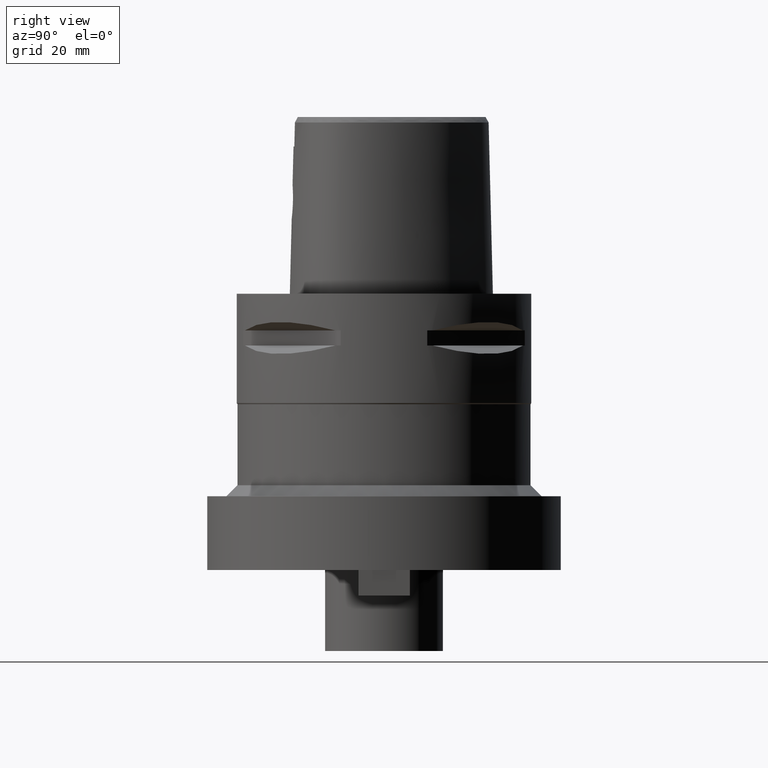
[diagram: clean part render]
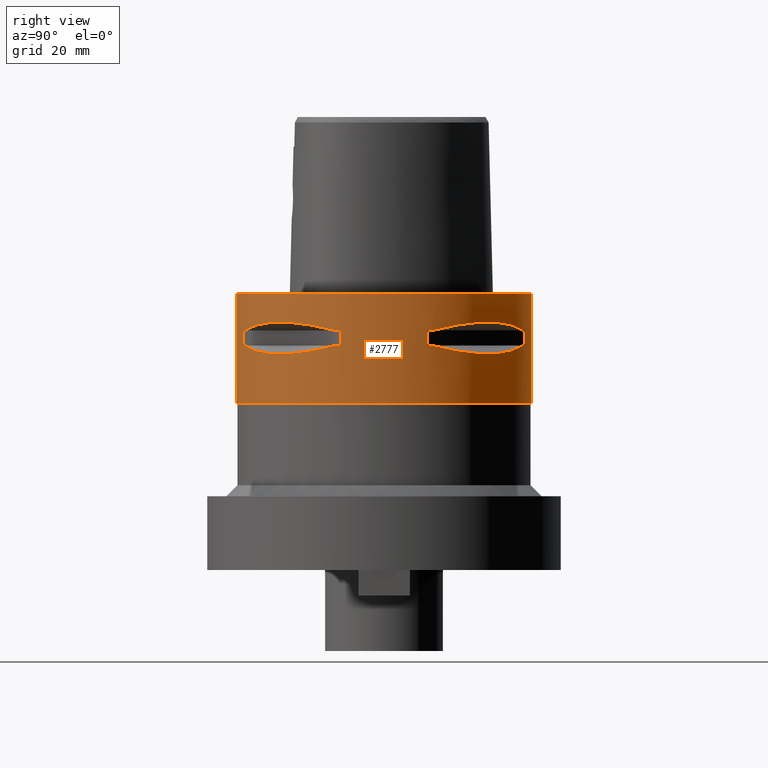
[diagram: same view with one face highlighted and labeled with its STEP entity id]
A machine part, right view. The second image highlights one B-rep face of the part: STEP entity #2777.
In plain terms, the highlighted cylindrical surface (partial cylindrical patch) has radius 40 mm, axis along (0, 0, -1).
Its self-contained STEP definition (entity closure, byte-faithful):
#296=CARTESIAN_POINT('',(0.E0,1.284042168906E-14,0.E0));
#297=DIRECTION('',(0.E0,0.E0,-1.E0));
#298=DIRECTION('',(0.E0,1.E0,0.E0));
#299=AXIS2_PLACEMENT_3D('',#296,#297,#298);
#390=DIRECTION('',(0.E0,4.960018233996E-14,-1.E0));
#391=VECTOR('',#390,2.965358983849E1);
#392=CARTESIAN_POINT('',(0.E0,-4.E1,0.E0));
#393=LINE('',#392,#391);
#447=DIRECTION('',(0.E0,-5.007941115484E-14,-1.E0));
#448=VECTOR('',#447,2.965358983849E1);
#449=CARTESIAN_POINT('',(0.E0,4.E1,0.E0));
#450=LINE('',#449,#448);
#454=DIRECTION('',(0.E0,0.E0,-1.E0));
#455=VECTOR('',#454,4.1E0);
#456=CARTESIAN_POINT('',(1.176033600281E1,-3.823211342708E1,-9.95E0));
#457=LINE('',#456,#455);
#461=CARTESIAN_POINT('',(1.323717311056E1,-3.774622163927E1,-1.405E1));
#462=CARTESIAN_POINT('',(1.626143876435E1,-3.668564587161E1,-1.485167303901E1));
#463=CARTESIAN_POINT('',(2.171906657626E1,-3.397359084062E1,-1.597254843317E1));
#464=CARTESIAN_POINT('',(2.850324251697E1,-2.850324251697E1,-1.650891631180E1));
#465=CARTESIAN_POINT('',(3.397359084062E1,-2.171906657626E1,-1.597254843317E1));
#466=CARTESIAN_POINT('',(3.668564587161E1,-1.626143876435E1,-1.485167303901E1));
#467=CARTESIAN_POINT('',(3.774622163927E1,-1.323717311056E1,-1.405E1));
#472=DIRECTION('',(0.E0,0.E0,1.E0));
#473=VECTOR('',#472,4.1E0);
#474=CARTESIAN_POINT('',(3.823211342708E1,-1.176033600281E1,-1.405E1));
#475=LINE('',#474,#473);
#479=DIRECTION('',(0.E0,0.E0,-1.E0));
#480=VECTOR('',#479,4.1E0);
#481=CARTESIAN_POINT('',(3.823211342708E1,1.176033600281E1,-9.95E0));
#482=LINE('',#481,#480);
#486=CARTESIAN_POINT('',(3.774622163927E1,1.323717311056E1,-1.405E1));
#487=CARTESIAN_POINT('',(3.668564587161E1,1.626143876435E1,-1.485167303901E1));
#488=CARTESIAN_POINT('',(3.397359084062E1,2.171906657626E1,-1.597254843317E1));
#489=CARTESIAN_POINT('',(2.850324251697E1,2.850324251697E1,-1.650891631180E1));
#490=CARTESIAN_POINT('',(2.171906657626E1,3.397359084062E1,-1.597254843317E1));
#491=CARTESIAN_POINT('',(1.626143876435E1,3.668564587161E1,-1.485167303901E1));
#492=CARTESIAN_POINT('',(1.323717311056E1,3.774622163927E1,-1.405E1));
#497=DIRECTION('',(0.E0,0.E0,1.E0));
#498=VECTOR('',#497,4.1E0);
#499=CARTESIAN_POINT('',(1.176033600281E1,3.823211342708E1,-1.405E1));
#500=LINE('',#499,#498);
#519=CARTESIAN_POINT('',(0.E0,0.E0,-2.965358983849E1));
#520=DIRECTION('',(0.E0,0.E0,1.E0));
#521=DIRECTION('',(0.E0,-1.E0,0.E0));
#522=AXIS2_PLACEMENT_3D('',#519,#520,#521);
#1434=CARTESIAN_POINT('',(1.323717311056E1,-3.774622163927E1,
-9.950000000002E0));
#1435=CARTESIAN_POINT('',(1.626143876435E1,-3.668564587161E1,
-9.148326960991E0));
#1436=CARTESIAN_POINT('',(2.171906657626E1,-3.397359084062E1,
-8.027451566833E0));
#1437=CARTESIAN_POINT('',(2.850324251697E1,-2.850324251697E1,
-7.491083688204E0));
#1438=CARTESIAN_POINT('',(3.397359084062E1,-2.171906657626E1,
-8.027451566833E0));
#1439=CARTESIAN_POINT('',(3.668564587161E1,-1.626143876435E1,
-9.148326960991E0));
#1440=CARTESIAN_POINT('',(3.774622163927E1,-1.323717311056E1,
-9.950000000002E0));
#1445=CARTESIAN_POINT('',(0.E0,1.284042168906E-14,-9.95E0));
#1446=DIRECTION('',(0.E0,0.E0,1.E0));
#1447=DIRECTION('',(9.436555409818E-1,-3.309293277639E-1,0.E0));
#1448=AXIS2_PLACEMENT_3D('',#1445,#1446,#1447);
#1453=CARTESIAN_POINT('',(0.E0,1.284042168906E-14,-9.95E0));
#1454=DIRECTION('',(0.E0,0.E0,1.E0));
#1455=DIRECTION('',(2.940084000703E-1,-9.558028356770E-1,0.E0));
#1456=AXIS2_PLACEMENT_3D('',#1453,#1454,#1455);
#1475=CARTESIAN_POINT('',(0.E0,1.284042168906E-14,-1.405E1));
#1476=DIRECTION('',(0.E0,0.E0,-1.E0));
#1477=DIRECTION('',(9.558028356770E-1,-2.940084000703E-1,0.E0));
#1478=AXIS2_PLACEMENT_3D('',#1475,#1476,#1477);
#1483=CARTESIAN_POINT('',(0.E0,1.284042168906E-14,-1.405E1));
#1484=DIRECTION('',(0.E0,0.E0,-1.E0));
#1485=DIRECTION('',(3.309293277639E-1,-9.436555409818E-1,0.E0));
#1486=AXIS2_PLACEMENT_3D('',#1483,#1484,#1485);
#1505=CARTESIAN_POINT('',(3.774622163927E1,1.323717311056E1,-9.950000000002E0));
#1506=CARTESIAN_POINT('',(3.668564587161E1,1.626143876435E1,-9.148326960991E0));
#1507=CARTESIAN_POINT('',(3.397359084062E1,2.171906657626E1,-8.027451566833E0));
#1508=CARTESIAN_POINT('',(2.850324251697E1,2.850324251697E1,-7.491083688204E0));
#1509=CARTESIAN_POINT('',(2.171906657626E1,3.397359084062E1,-8.027451566833E0));
#1510=CARTESIAN_POINT('',(1.626143876435E1,3.668564587161E1,-9.148326960991E0));
#1511=CARTESIAN_POINT('',(1.323717311056E1,3.774622163927E1,-9.950000000002E0));
#1516=CARTESIAN_POINT('',(0.E0,1.284042168906E-14,-9.95E0));
#1517=DIRECTION('',(0.E0,0.E0,1.E0));
#1518=DIRECTION('',(3.309293277639E-1,9.436555409818E-1,0.E0));
#1519=AXIS2_PLACEMENT_3D('',#1516,#1517,#1518);
#1524=CARTESIAN_POINT('',(0.E0,1.284042168906E-14,-9.95E0));
#1525=DIRECTION('',(0.E0,0.E0,1.E0));
#1526=DIRECTION('',(9.558028356770E-1,2.940084000703E-1,0.E0));
#1527=AXIS2_PLACEMENT_3D('',#1524,#1525,#1526);
#1546=CARTESIAN_POINT('',(0.E0,1.284042168906E-14,-1.405E1));
#1547=DIRECTION('',(0.E0,0.E0,-1.E0));
#1548=DIRECTION('',(2.940084000703E-1,9.558028356770E-1,0.E0));
#1549=AXIS2_PLACEMENT_3D('',#1546,#1547,#1548);
#1554=CARTESIAN_POINT('',(0.E0,1.284042168906E-14,-1.405E1));
#1555=DIRECTION('',(0.E0,0.E0,-1.E0));
#1556=DIRECTION('',(9.436555409818E-1,3.309293277639E-1,0.E0));
#1557=AXIS2_PLACEMENT_3D('',#1554,#1555,#1556);
#1740=CARTESIAN_POINT('',(0.E0,-4.E1,0.E0));
#1741=CARTESIAN_POINT('',(0.E0,4.E1,0.E0));
#1742=VERTEX_POINT('',#1740);
#1743=VERTEX_POINT('',#1741);
#1744=CARTESIAN_POINT('',(0.E0,4.E1,-2.965358983849E1));
#1745=VERTEX_POINT('',#1744);
#1746=CARTESIAN_POINT('',(0.E0,-4.E1,-2.965358983849E1));
#1747=VERTEX_POINT('',#1746);
#1774=VERTEX_POINT('',#1434);
#1775=VERTEX_POINT('',#1440);
#1776=CARTESIAN_POINT('',(1.176033600281E1,-3.823211342708E1,-9.95E0));
#1777=VERTEX_POINT('',#1776);
#1778=CARTESIAN_POINT('',(1.176033600281E1,-3.823211342708E1,-1.405E1));
#1779=VERTEX_POINT('',#1778);
#1780=CARTESIAN_POINT('',(1.323717311056E1,-3.774622163927E1,-1.405E1));
#1781=VERTEX_POINT('',#1780);
#1782=VERTEX_POINT('',#467);
#1783=CARTESIAN_POINT('',(3.823211342708E1,-1.176033600281E1,-1.405E1));
#1784=VERTEX_POINT('',#1783);
#1785=CARTESIAN_POINT('',(3.823211342708E1,-1.176033600281E1,-9.95E0));
#1786=VERTEX_POINT('',#1785);
#1787=VERTEX_POINT('',#1505);
#1788=VERTEX_POINT('',#1511);
#1789=CARTESIAN_POINT('',(3.823211342708E1,1.176033600281E1,-9.95E0));
#1790=VERTEX_POINT('',#1789);
#1791=CARTESIAN_POINT('',(3.823211342708E1,1.176033600281E1,-1.405E1));
#1792=VERTEX_POINT('',#1791);
#1793=CARTESIAN_POINT('',(3.774622163927E1,1.323717311056E1,-1.405E1));
#1794=VERTEX_POINT('',#1793);
#1795=VERTEX_POINT('',#492);
#1796=CARTESIAN_POINT('',(1.176033600281E1,3.823211342708E1,-1.405E1));
#1797=VERTEX_POINT('',#1796);
#1798=CARTESIAN_POINT('',(1.176033600281E1,3.823211342708E1,-9.95E0));
#1799=VERTEX_POINT('',#1798);
#2729=CARTESIAN_POINT('',(0.E0,1.284042168906E-14,4.85E0));
#2730=DIRECTION('',(0.E0,0.E0,-1.E0));
#2731=DIRECTION('',(0.E0,-1.E0,0.E0));
#2732=AXIS2_PLACEMENT_3D('',#2729,#2730,#2731);
#2733=CYLINDRICAL_SURFACE('',#2732,4.E1);
#2734=ORIENTED_EDGE('',*,*,#2683,.T.);
#2736=ORIENTED_EDGE('',*,*,#2735,.F.);
#2737=ORIENTED_EDGE('',*,*,#2686,.F.);
#2738=ORIENTED_EDGE('',*,*,#2668,.F.);
#2739=EDGE_LOOP('',(#2734,#2736,#2737,#2738));
#2740=FACE_OUTER_BOUND('',#2739,.F.);
#2742=ORIENTED_EDGE('',*,*,#2741,.F.);
#2744=ORIENTED_EDGE('',*,*,#2743,.F.);
#2746=ORIENTED_EDGE('',*,*,#2745,.T.);
#2748=ORIENTED_EDGE('',*,*,#2747,.F.);
#2750=ORIENTED_EDGE('',*,*,#2749,.T.);
#2752=ORIENTED_EDGE('',*,*,#2751,.F.);
#2754=ORIENTED_EDGE('',*,*,#2753,.T.);
#2756=ORIENTED_EDGE('',*,*,#2755,.F.);
#2757=EDGE_LOOP('',(#2742,#2744,#2746,#2748,#2750,#2752,#2754,#2756));
#2758=FACE_BOUND('',#2757,.F.);
#2760=ORIENTED_EDGE('',*,*,#2759,.F.);
#2762=ORIENTED_EDGE('',*,*,#2761,.F.);
#2764=ORIENTED_EDGE('',*,*,#2763,.T.);
#2766=ORIENTED_EDGE('',*,*,#2765,.F.);
#2768=ORIENTED_EDGE('',*,*,#2767,.T.);
#2770=ORIENTED_EDGE('',*,*,#2769,.F.);
#2772=ORIENTED_EDGE('',*,*,#2771,.T.);
#2774=ORIENTED_EDGE('',*,*,#2773,.F.);
#2775=EDGE_LOOP('',(#2760,#2762,#2764,#2766,#2768,#2770,#2772,#2774));
#2776=FACE_BOUND('',#2775,.F.);
#300=CIRCLE('',#299,4.E1);
#468=B_SPLINE_CURVE_WITH_KNOTS('',3,(#461,#462,#463,#464,#465,#466,#467),
.UNSPECIFIED.,.F.,.F.,(4,1,1,1,4),(0.E0,2.5E-1,5.E-1,7.5E-1,1.E0),
.UNSPECIFIED.);
#493=B_SPLINE_CURVE_WITH_KNOTS('',3,(#486,#487,#488,#489,#490,#491,#492),
.UNSPECIFIED.,.F.,.F.,(4,1,1,1,4),(0.E0,2.5E-1,5.E-1,7.5E-1,1.E0),
.UNSPECIFIED.);
#523=CIRCLE('',#522,4.E1);
#1441=B_SPLINE_CURVE_WITH_KNOTS('',3,(#1434,#1435,#1436,#1437,#1438,#1439,
#1440),.UNSPECIFIED.,.F.,.F.,(4,1,1,1,4),(0.E0,2.5E-1,5.E-1,7.5E-1,1.E0),
.UNSPECIFIED.);
#1449=CIRCLE('',#1448,4.E1);
#1457=CIRCLE('',#1456,4.E1);
#1479=CIRCLE('',#1478,4.E1);
#1487=CIRCLE('',#1486,4.E1);
#1512=B_SPLINE_CURVE_WITH_KNOTS('',3,(#1505,#1506,#1507,#1508,#1509,#1510,
#1511),.UNSPECIFIED.,.F.,.F.,(4,1,1,1,4),(0.E0,2.5E-1,5.E-1,7.5E-1,1.E0),
.UNSPECIFIED.);
#1520=CIRCLE('',#1519,4.E1);
#1528=CIRCLE('',#1527,4.E1);
#1550=CIRCLE('',#1549,4.E1);
#1558=CIRCLE('',#1557,4.E1);
#2668=EDGE_CURVE('',#1743,#1742,#300,.T.);
#2683=EDGE_CURVE('',#1743,#1745,#450,.T.);
#2686=EDGE_CURVE('',#1742,#1747,#393,.T.);
#2735=EDGE_CURVE('',#1747,#1745,#523,.T.);
#2741=EDGE_CURVE('',#1774,#1775,#1441,.T.);
#2743=EDGE_CURVE('',#1777,#1774,#1457,.T.);
#2745=EDGE_CURVE('',#1777,#1779,#457,.T.);
#2747=EDGE_CURVE('',#1781,#1779,#1487,.T.);
#2749=EDGE_CURVE('',#1781,#1782,#468,.T.);
#2751=EDGE_CURVE('',#1784,#1782,#1479,.T.);
#2753=EDGE_CURVE('',#1784,#1786,#475,.T.);
#2755=EDGE_CURVE('',#1775,#1786,#1449,.T.);
#2759=EDGE_CURVE('',#1787,#1788,#1512,.T.);
#2761=EDGE_CURVE('',#1790,#1787,#1528,.T.);
#2763=EDGE_CURVE('',#1790,#1792,#482,.T.);
#2765=EDGE_CURVE('',#1794,#1792,#1558,.T.);
#2767=EDGE_CURVE('',#1794,#1795,#493,.T.);
#2769=EDGE_CURVE('',#1797,#1795,#1550,.T.);
#2771=EDGE_CURVE('',#1797,#1799,#500,.T.);
#2773=EDGE_CURVE('',#1788,#1799,#1520,.T.);
#2777=ADVANCED_FACE('',(#2740,#2758,#2776),#2733,.T.);